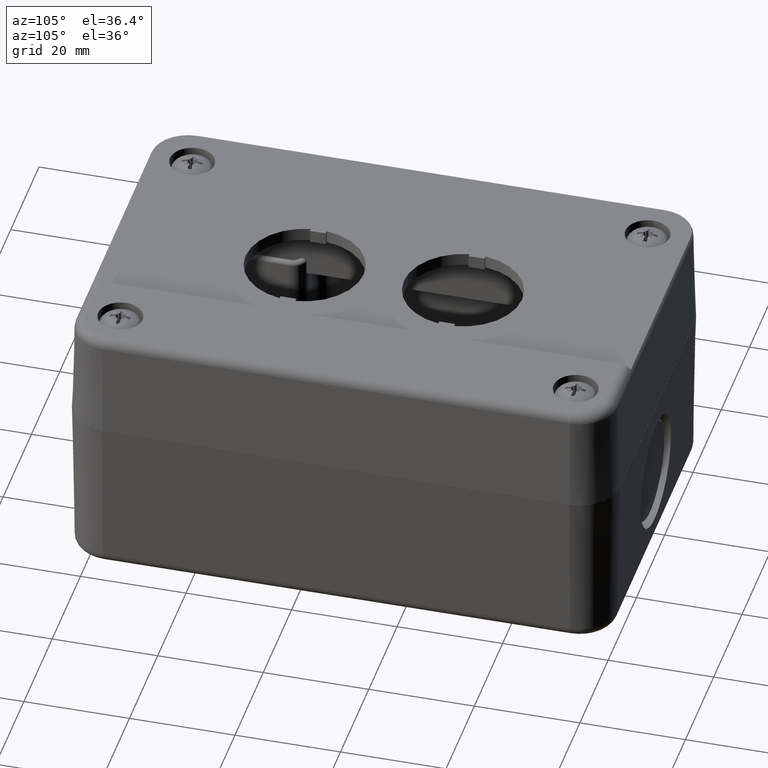
[diagram: clean part render]
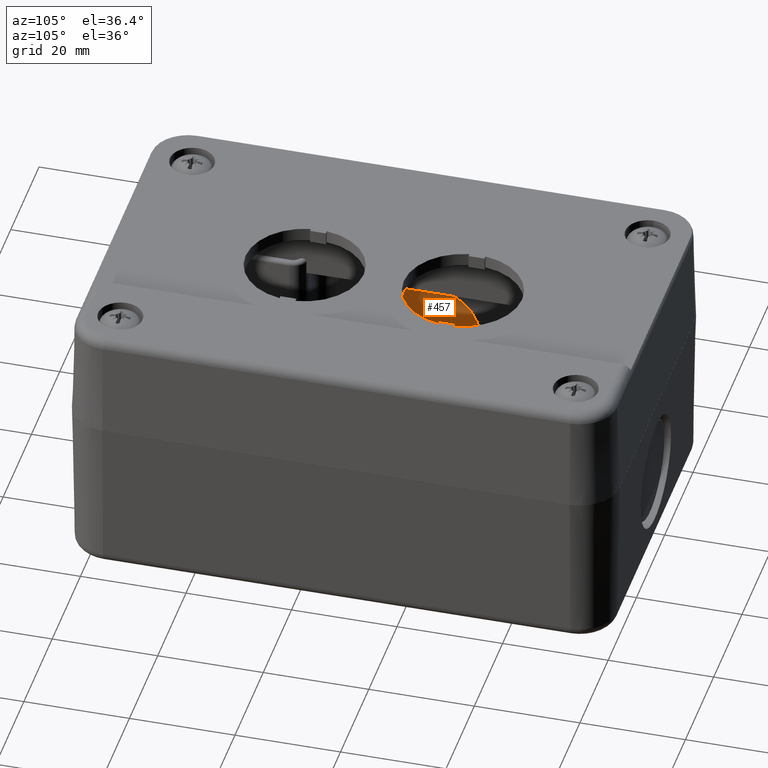
[diagram: same view with one face highlighted and labeled with its STEP entity id]
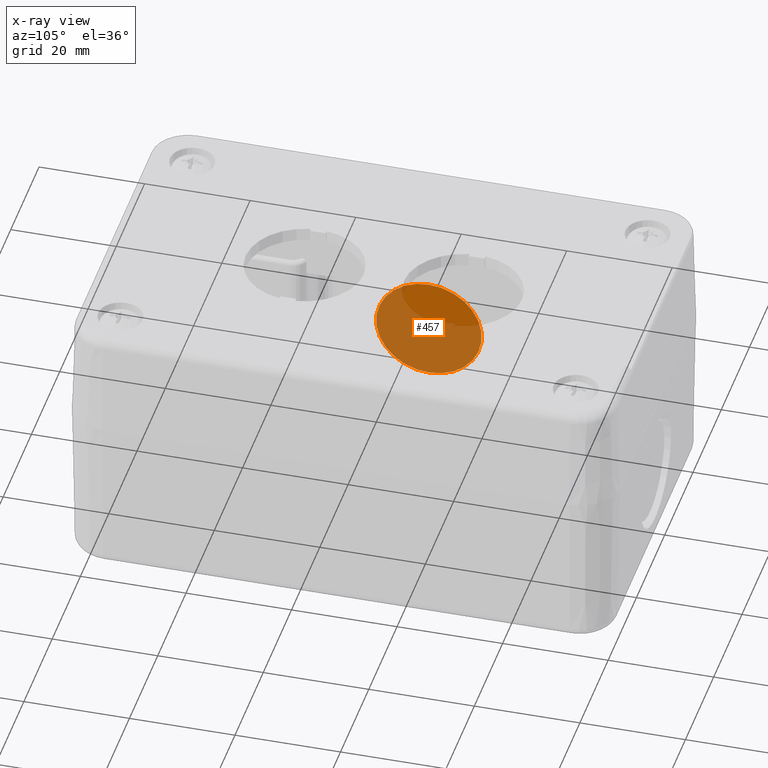
[diagram: x-ray of the same camera — body ghosted, the highlighted face saturated]
A machine part, auxiliary view. The second image highlights one B-rep face of the part: STEP entity #457.
The next image is the same camera in x-ray: the body ghosted, the highlighted face saturated — about 72% of this face is hidden behind the body in this view.
In plain terms, the highlighted planar face has unit normal (-1, 0, 0).
Its self-contained STEP definition (entity closure, byte-faithful):
#426=CARTESIAN_POINT('',(-47.622549297178537,27.922435103463570,5.300000000000003));
#427=VERTEX_POINT('',#426);
#428=CARTESIAN_POINT('',(-47.622549297178537,27.922435103463570,15.300000000000002));
#429=DIRECTION('',(1.0,0.0,0.0));
#430=DIRECTION('',(0.0,0.0,1.0));
#431=AXIS2_PLACEMENT_3D('',#428,#429,#430);
#432=CIRCLE('',#431,10.0);
#433=EDGE_CURVE('',#427,#427,#432,.T.);
#449=CARTESIAN_POINT('',(-47.622549297178537,27.922435103463570,15.300000000000002));
#450=DIRECTION('',(-1.0,0.0,0.0));
#451=DIRECTION('',(0.0,0.0,1.0));
#452=AXIS2_PLACEMENT_3D('',#449,#450,#451);
#453=PLANE('',#452);
#454=ORIENTED_EDGE('',*,*,#433,.T.);
#455=EDGE_LOOP('',(#454));
#456=FACE_OUTER_BOUND('',#455,.T.);
#457=ADVANCED_FACE('',(#456),#453,.F.);